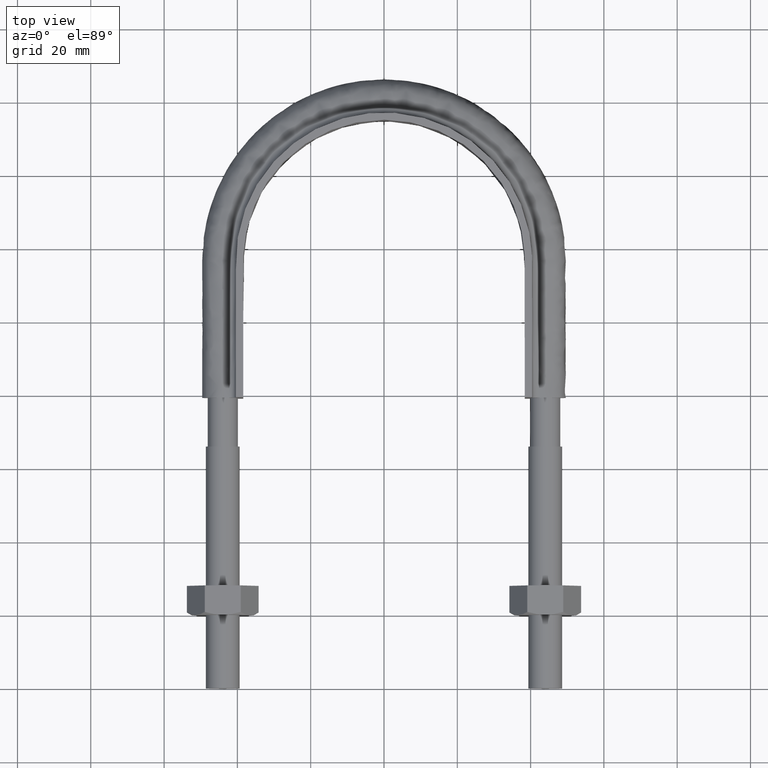
[diagram: clean part render]
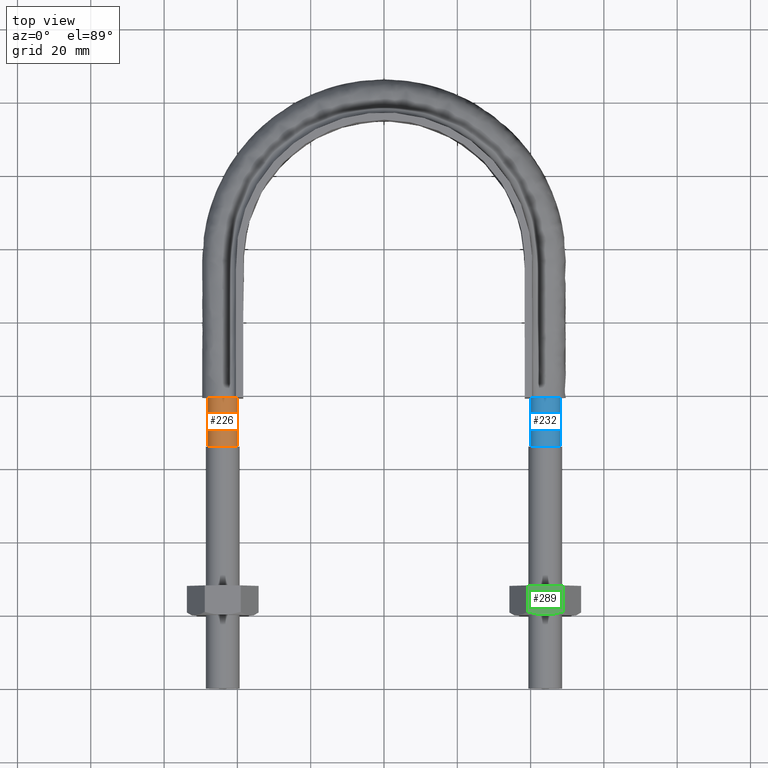
[diagram: same view with three faces highlighted in distinct colors, each labeled with its STEP entity id]
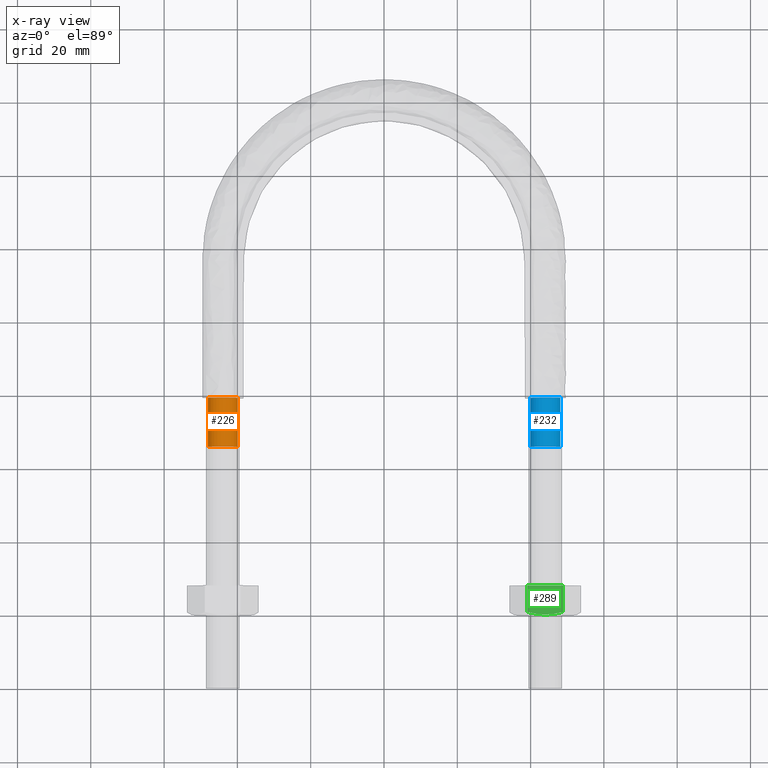
[diagram: x-ray of the same camera — body ghosted, the three highlighted faces saturated]
A machine part, top view with three faces highlighted in distinct colors.
The next image is the same camera in x-ray (body ghosted, the three faces saturated) — at least one of them is partly hidden behind the body in this view.
Their STEP definitions:

[orange] entity #226 — the highlighted cylindrical surface (bore or boss wall) has radius 4.1 mm, axis along (-0, -1, -0).
#226 = ADVANCED_FACE( '', ( #313, #314 ), #315, .T. );
#313 = FACE_OUTER_BOUND( '', #1161, .T. );
#314 = FACE_OUTER_BOUND( '', #1162, .T. );
#315 = CYLINDRICAL_SURFACE( '', #1163, 4.10000000000000 );
#1161 = EDGE_LOOP( '', ( #1523 ) );
#1162 = EDGE_LOOP( '', ( #1524, #1525, #1526, #1527, #1528, #1529, #1530 ) );
#1163 = AXIS2_PLACEMENT_3D( '', #1531, #1532, #1533 );
#1523 = ORIENTED_EDGE( '', *, *, #2017, .T. );
#1524 = ORIENTED_EDGE( '', *, *, #2018, .T. );
#1525 = ORIENTED_EDGE( '', *, *, #2019, .T. );
#1526 = ORIENTED_EDGE( '', *, *, #2020, .T. );
#1527 = ORIENTED_EDGE( '', *, *, #2021, .T. );
#1528 = ORIENTED_EDGE( '', *, *, #2022, .T. );
#1529 = ORIENTED_EDGE( '', *, *, #2023, .T. );
#1530 = ORIENTED_EDGE( '', *, *, #2024, .T. );
#1531 = CARTESIAN_POINT( '', ( -44.0000000000000, 79.3000000000000, 2.34512116756985E-015 ) );
#1532 = DIRECTION( '', ( -2.44921270764475E-016, -1.00000000000000, -6.12303176911189E-017 ) );
#1533 = DIRECTION( '', ( 1.00000000000000, -2.44921270764475E-016, -7.49830360911069E-033 ) );
#2017 = EDGE_CURVE( '', #2179, #2179, #2180, .T. );
#2018 = EDGE_CURVE( '', #2181, #2182, #2183, .T. );
#2019 = EDGE_CURVE( '', #2182, #2184, #2185, .T. );
#2020 = EDGE_CURVE( '', #2184, #2186, #2187, .T. );
#2021 = EDGE_CURVE( '', #2186, #2188, #2189, .T. );
#2022 = EDGE_CURVE( '', #2188, #2190, #2191, .T. );
#2023 = EDGE_CURVE( '', #2190, #2192, #2193, .T. );
#2024 = EDGE_CURVE( '', #2192, #2181, #2194, .T. );
#2179 = VERTEX_POINT( '', #2646 );
#2180 = CIRCLE( '', #2647, 4.10000000000000 );
#2181 = VERTEX_POINT( '', #2648 );
#2182 = VERTEX_POINT( '', #2649 );
#2183 = CIRCLE( '', #2650, 4.10000000000000 );
#2184 = VERTEX_POINT( '', #2651 );
#2185 = CIRCLE( '', #2652, 4.10000000000000 );
#2186 = VERTEX_POINT( '', #2653 );
#2187 = CIRCLE( '', #2654, 4.10000000000000 );
#2188 = VERTEX_POINT( '', #2655 );
#2189 = CIRCLE( '', #2656, 4.10000000000000 );
#2190 = VERTEX_POINT( '', #2657 );
#2191 = CIRCLE( '', #2658, 4.10000000000000 );
#2192 = VERTEX_POINT( '', #2659 );
#2193 = CIRCLE( '', #2660, 4.10000000000000 );
#2194 = CIRCLE( '', #2661, 4.10000000000000 );
#2646 = CARTESIAN_POINT( '', ( -39.9000000000000, 66.0000000000000, 1.53075794227797E-015 ) );
#2647 = AXIS2_PLACEMENT_3D( '', #3076, #3077, #3078 );
#2648 = CARTESIAN_POINT( '', ( -39.9000000000000, 79.3000000000000, 5.26458725159965E-014 ) );
#2649 = CARTESIAN_POINT( '', ( -41.4436918124017, 79.3000000000000, 3.20550907813692 ) );
#2650 = AXIS2_PLACEMENT_3D( '', #3079, #3080, #3081 );
#2651 = CARTESIAN_POINT( '', ( -44.9123358292510, 79.3000000000000, 3.99720443993860 ) );
#2652 = AXIS2_PLACEMENT_3D( '', #3082, #3083, #3084 );
#2653 = CARTESIAN_POINT( '', ( -47.6939723583999, 79.3000000000000, 1.77892333038206 ) );
#2654 = AXIS2_PLACEMENT_3D( '', #3085, #3086, #3087 );
#2655 = CARTESIAN_POINT( '', ( -47.6939723583999, 79.3000000000000, -1.77892333038199 ) );
#2656 = AXIS2_PLACEMENT_3D( '', #3088, #3089, #3090 );
#2657 = CARTESIAN_POINT( '', ( -44.9123358292208, 79.3000000000000, -3.99720443994549 ) );
#2658 = AXIS2_PLACEMENT_3D( '', #3091, #3092, #3093 );
#2659 = CARTESIAN_POINT( '', ( -41.4436918123794, 79.3000000000000, -3.20550907811908 ) );
#2660 = AXIS2_PLACEMENT_3D( '', #3094, #3095, #3096 );
#2661 = AXIS2_PLACEMENT_3D( '', #3097, #3098, #3099 );
#3076 = CARTESIAN_POINT( '', ( -44.0000000000000, 66.0000000000000, 1.53075794227797E-015 ) );
#3077 = DIRECTION( '', ( 2.44921270764476E-016, 1.00000000000000, 6.12303176911189E-017 ) );
#3078 = DIRECTION( '', ( 1.00000000000000, -2.44921270764476E-016, 0.000000000000000 ) );
#3079 = CARTESIAN_POINT( '', ( -44.0000000000000, 79.3000000000000, 2.34512116756985E-015 ) );
#3080 = DIRECTION( '', ( -2.44921270764475E-016, -1.00000000000000, -6.12303176911189E-017 ) );
#3081 = DIRECTION( '', ( 1.00000000000000, -2.44921270764475E-016, -1.04341724267742E-032 ) );
#3082 = CARTESIAN_POINT( '', ( -44.0000000000000, 79.3000000000000, 2.34512116756985E-015 ) );
#3083 = DIRECTION( '', ( -2.44921270764475E-016, -1.00000000000000, -6.12303176911189E-017 ) );
#3084 = DIRECTION( '', ( 1.00000000000000, -2.44921270764475E-016, -1.04341724267742E-032 ) );
#3085 = CARTESIAN_POINT( '', ( -44.0000000000000, 79.3000000000000, 2.34512116756985E-015 ) );
#3086 = DIRECTION( '', ( -2.44921270764475E-016, -1.00000000000000, -6.12303176911189E-017 ) );
#3087 = DIRECTION( '', ( 1.00000000000000, -2.44921270764475E-016, -1.04341724267742E-032 ) );
#3088 = CARTESIAN_POINT( '', ( -44.0000000000000, 79.3000000000000, 2.34512116756985E-015 ) );
#3089 = DIRECTION( '', ( -2.44921270764475E-016, -1.00000000000000, -6.12303176911189E-017 ) );
#3090 = DIRECTION( '', ( 1.00000000000000, -2.44921270764475E-016, -1.04341724267742E-032 ) );
#3091 = CARTESIAN_POINT( '', ( -44.0000000000000, 79.3000000000000, 2.34512116756985E-015 ) );
#3092 = DIRECTION( '', ( -2.44921270764475E-016, -1.00000000000000, -6.12303176911189E-017 ) );
#3093 = DIRECTION( '', ( 1.00000000000000, -2.44921270764475E-016, -1.04341724267742E-032 ) );
#3094 = CARTESIAN_POINT( '', ( -44.0000000000000, 79.3000000000000, 2.34512116756985E-015 ) );
#3095 = DIRECTION( '', ( -2.44921270764475E-016, -1.00000000000000, -6.12303176911189E-017 ) );
#3096 = DIRECTION( '', ( 1.00000000000000, -2.44921270764475E-016, -1.04341724267742E-032 ) );
#3097 = CARTESIAN_POINT( '', ( -44.0000000000000, 79.3000000000000, 2.34512116756985E-015 ) );
#3098 = DIRECTION( '', ( -2.44921270764475E-016, -1.00000000000000, -6.12303176911189E-017 ) );
#3099 = DIRECTION( '', ( 1.00000000000000, -2.44921270764475E-016, -1.04341724267742E-032 ) );

[blue] entity #232 — the highlighted cylindrical surface (bore or boss wall) has radius 4.1 mm, axis along (-0, -1, -0).
#232 = ADVANCED_FACE( '', ( #328, #329 ), #330, .T. );
#328 = FACE_OUTER_BOUND( '', #1325, .T. );
#329 = FACE_OUTER_BOUND( '', #1326, .T. );
#330 = CYLINDRICAL_SURFACE( '', #1327, 4.10000000000000 );
#1325 = EDGE_LOOP( '', ( #1568 ) );
#1326 = EDGE_LOOP( '', ( #1569, #1570, #1571, #1572, #1573, #1574, #1575 ) );
#1327 = AXIS2_PLACEMENT_3D( '', #1576, #1577, #1578 );
#1568 = ORIENTED_EDGE( '', *, *, #2043, .T. );
#1569 = ORIENTED_EDGE( '', *, *, #2044, .T. );
#1570 = ORIENTED_EDGE( '', *, *, #2042, .T. );
#1571 = ORIENTED_EDGE( '', *, *, #2045, .T. );
#1572 = ORIENTED_EDGE( '', *, *, #2028, .T. );
#1573 = ORIENTED_EDGE( '', *, *, #2046, .T. );
#1574 = ORIENTED_EDGE( '', *, *, #2047, .T. );
#1575 = ORIENTED_EDGE( '', *, *, #2025, .T. );
#1576 = CARTESIAN_POINT( '', ( 44.0000000000000, 79.3000000000000, 2.31450600872429E-015 ) );
#1577 = DIRECTION( '', ( -2.44921270764475E-016, -1.00000000000000, -6.12303176911189E-017 ) );
#1578 = DIRECTION( '', ( 1.00000000000000, -2.44921270764475E-016, -7.49830360911069E-033 ) );
#2025 = EDGE_CURVE( '', #2195, #2196, #2197, .T. );
#2028 = EDGE_CURVE( '', #2201, #2202, #2203, .T. );
#2042 = EDGE_CURVE( '', #2207, #2205, #2220, .T. );
#2043 = EDGE_CURVE( '', #2221, #2221, #2222, .T. );
#2044 = EDGE_CURVE( '', #2196, #2207, #2223, .T. );
#2045 = EDGE_CURVE( '', #2205, #2201, #2224, .T. );
#2046 = EDGE_CURVE( '', #2202, #2210, #2225, .T. );
#2047 = EDGE_CURVE( '', #2210, #2195, #2226, .T. );
#2195 = VERTEX_POINT( '', #2662 );
#2196 = VERTEX_POINT( '', #2663 );
#2197 = CIRCLE( '', #2664, 4.10000000000000 );
#2201 = VERTEX_POINT( '', #2671 );
#2202 = VERTEX_POINT( '', #2672 );
#2203 = CIRCLE( '', #2673, 4.10000000000000 );
#2205 = VERTEX_POINT( '', #2678 );
#2207 = VERTEX_POINT( '', #2683 );
#2210 = VERTEX_POINT( '', #2692 );
#2220 = CIRCLE( '', #2729, 4.10000000000000 );
#2221 = VERTEX_POINT( '', #2730 );
#2222 = CIRCLE( '', #2731, 4.10000000000000 );
#2223 = CIRCLE( '', #2732, 4.10000000000000 );
#2224 = CIRCLE( '', #2733, 4.10000000000000 );
#2225 = CIRCLE( '', #2734, 4.10000000000000 );
#2226 = CIRCLE( '', #2735, 4.10000000000000 );
#2662 = CARTESIAN_POINT( '', ( 47.6939723583999, 79.3000000000000, -1.77892333038203 ) );
#2663 = CARTESIAN_POINT( '', ( 47.6939723583999, 79.3000000000000, 1.77892333038204 ) );
#2664 = AXIS2_PLACEMENT_3D( '', #3100, #3101, #3102 );
#2671 = CARTESIAN_POINT( '', ( 39.9000000000000, 79.3000000000000, -3.30788549888553E-014 ) );
#2672 = CARTESIAN_POINT( '', ( 41.4436918123816, 79.3000000000000, -3.20550907812083 ) );
#2673 = AXIS2_PLACEMENT_3D( '', #3106, #3107, #3108 );
#2678 = CARTESIAN_POINT( '', ( 41.4436918123789, 79.3000000000000, 3.20550907811870 ) );
#2683 = CARTESIAN_POINT( '', ( 44.9123358292208, 79.3000000000000, 3.99720443994549 ) );
#2692 = CARTESIAN_POINT( '', ( 44.9123358292214, 79.3000000000000, -3.99720443994536 ) );
#2729 = AXIS2_PLACEMENT_3D( '', #3109, #3110, #3111 );
#2730 = CARTESIAN_POINT( '', ( 48.1000000000000, 66.0000000000000, 1.50014278343241E-015 ) );
#2731 = AXIS2_PLACEMENT_3D( '', #3112, #3113, #3114 );
#2732 = AXIS2_PLACEMENT_3D( '', #3115, #3116, #3117 );
#2733 = AXIS2_PLACEMENT_3D( '', #3118, #3119, #3120 );
#2734 = AXIS2_PLACEMENT_3D( '', #3121, #3122, #3123 );
#2735 = AXIS2_PLACEMENT_3D( '', #3124, #3125, #3126 );
#3100 = CARTESIAN_POINT( '', ( 44.0000000000000, 79.3000000000000, 2.31450600872429E-015 ) );
#3101 = DIRECTION( '', ( -2.44921270764475E-016, -1.00000000000000, -6.12303176911189E-017 ) );
#3102 = DIRECTION( '', ( 1.00000000000000, -2.44921270764475E-016, -7.49830360911068E-033 ) );
#3106 = CARTESIAN_POINT( '', ( 44.0000000000000, 79.3000000000000, 2.31450600872429E-015 ) );
#3107 = DIRECTION( '', ( -2.44921270764475E-016, -1.00000000000000, -6.12303176911189E-017 ) );
#3108 = DIRECTION( '', ( 1.00000000000000, -2.44921270764475E-016, -7.49830360911068E-033 ) );
#3109 = CARTESIAN_POINT( '', ( 44.0000000000000, 79.3000000000000, 2.31450600872429E-015 ) );
#3110 = DIRECTION( '', ( -2.44921270764475E-016, -1.00000000000000, -6.12303176911189E-017 ) );
#3111 = DIRECTION( '', ( 1.00000000000000, -2.44921270764475E-016, -7.49830360911068E-033 ) );
#3112 = CARTESIAN_POINT( '', ( 44.0000000000000, 66.0000000000000, 1.50014278343241E-015 ) );
#3113 = DIRECTION( '', ( 2.44921270764475E-016, 1.00000000000000, 6.12303176911189E-017 ) );
#3114 = DIRECTION( '', ( 1.00000000000000, -2.44921270764475E-016, 0.000000000000000 ) );
#3115 = CARTESIAN_POINT( '', ( 44.0000000000000, 79.3000000000000, 2.31450600872429E-015 ) );
#3116 = DIRECTION( '', ( -2.44921270764475E-016, -1.00000000000000, -6.12303176911189E-017 ) );
#3117 = DIRECTION( '', ( 1.00000000000000, -2.44921270764475E-016, -7.49830360911068E-033 ) );
#3118 = CARTESIAN_POINT( '', ( 44.0000000000000, 79.3000000000000, 2.31450600872429E-015 ) );
#3119 = DIRECTION( '', ( -2.44921270764475E-016, -1.00000000000000, -6.12303176911189E-017 ) );
#3120 = DIRECTION( '', ( 1.00000000000000, -2.44921270764475E-016, -7.49830360911068E-033 ) );
#3121 = CARTESIAN_POINT( '', ( 44.0000000000000, 79.3000000000000, 2.31450600872429E-015 ) );
#3122 = DIRECTION( '', ( -2.44921270764475E-016, -1.00000000000000, -6.12303176911189E-017 ) );
#3123 = DIRECTION( '', ( 1.00000000000000, -2.44921270764475E-016, -7.49830360911068E-033 ) );
#3124 = CARTESIAN_POINT( '', ( 44.0000000000000, 79.3000000000000, 2.31450600872429E-015 ) );
#3125 = DIRECTION( '', ( -2.44921270764475E-016, -1.00000000000000, -6.12303176911189E-017 ) );
#3126 = DIRECTION( '', ( 1.00000000000000, -2.44921270764475E-016, -7.49830360911068E-033 ) );

[green] entity #289 — the highlighted planar face has unit normal (0, 0, -1).
#289 = ADVANCED_FACE( '', ( #455 ), #456, .F. );
#455 = FACE_OUTER_BOUND( '', #1452, .T. );
#456 = PLANE( '', #1453 );
#1452 = EDGE_LOOP( '', ( #1962, #1963, #1964, #1965, #1966 ) );
#1453 = AXIS2_PLACEMENT_3D( '', #1967, #1968, #1969 );
#1962 = ORIENTED_EDGE( '', *, *, #2152, .F. );
#1963 = ORIENTED_EDGE( '', *, *, #2139, .F. );
#1964 = ORIENTED_EDGE( '', *, *, #2151, .F. );
#1965 = ORIENTED_EDGE( '', *, *, #2127, .F. );
#1966 = ORIENTED_EDGE( '', *, *, #2153, .F. );
#1967 = CARTESIAN_POINT( '', ( 39.0925227118882, 28.0000000000000, 8.50000000000000 ) );
#1968 = DIRECTION( '', ( 5.55111512312578E-017, 6.12303176911189E-017, -1.00000000000000 ) );
#1969 = DIRECTION( '', ( -1.00000000000000, 0.000000000000000, -5.55111512312578E-017 ) );
#2127 = EDGE_CURVE( '', #2363, #2365, #2366, .T. );
#2139 = EDGE_CURVE( '', #2384, #2379, #2386, .T. );
#2151 = EDGE_CURVE( '', #2365, #2384, #2400, .T. );
#2152 = EDGE_CURVE( '', #2379, #2401, #2402, .T. );
#2153 = EDGE_CURVE( '', #2401, #2363, #2403, .F. );
#2363 = VERTEX_POINT( '', #2982 );
#2365 = VERTEX_POINT( '', #2984 );
#2366 = LINE( '', #2985, #2986 );
#2379 = VERTEX_POINT( '', #3007 );
#2384 = VERTEX_POINT( '', #3017 );
#2386 = B_SPLINE_CURVE_WITH_KNOTS( '', 3, ( #3019, #3020, #3021, #3022, #3023, #3024 ), .UNSPECIFIED., .F., .F., ( 4, 2, 4 ), ( 6.93889390390723E-018, 0.00246745482903607, 0.00493490965807212 ), .UNSPECIFIED. );
#2400 = LINE( '', #3058, #3059 );
#2401 = VERTEX_POINT( '', #3060 );
#2402 = B_SPLINE_CURVE_WITH_KNOTS( '', 3, ( #3061, #3062, #3063, #3064, #3065, #3066 ), .UNSPECIFIED., .F., .F., ( 4, 2, 4 ), ( 0.000000000000000, 0.00246745482903606, 0.00493490965807211 ), .UNSPECIFIED. );
#2403 = LINE( '', #3067, #3068 );
#2982 = CARTESIAN_POINT( '', ( 39.1225006406971, 28.0000000000000, 8.50000000000000 ) );
#2984 = CARTESIAN_POINT( '', ( 48.8774993593029, 28.0000000000000, 8.50000000000000 ) );
#2985 = CARTESIAN_POINT( '', ( 48.9000000000000, 28.0000000000000, 8.50000000000000 ) );
#2986 = VECTOR( '', #3263, 1000.00000000000 );
#3007 = CARTESIAN_POINT( '', ( 44.0000000000000, 20.0000000000000, 8.50000000000000 ) );
#3017 = CARTESIAN_POINT( '', ( 48.8774993593029, 20.7505553499465, 8.50000000000000 ) );
#3019 = CARTESIAN_POINT( '', ( 48.8774993593029, 20.7505553499465, 8.50000000000000 ) );
#3020 = CARTESIAN_POINT( '', ( 48.0805717066773, 20.5215585493657, 8.50000000000000 ) );
#3021 = CARTESIAN_POINT( '', ( 47.2774431756629, 20.3328582843707, 8.50000000000000 ) );
#3022 = CARTESIAN_POINT( '', ( 45.6533062476857, 20.0716504305290, 8.50000000000000 ) );
#3023 = CARTESIAN_POINT( '', ( 44.8321659501907, 20.0000000000000, 8.50000000000000 ) );
#3024 = CARTESIAN_POINT( '', ( 44.0000000000000, 20.0000000000000, 8.50000000000000 ) );
#3058 = CARTESIAN_POINT( '', ( 48.8774993593029, 28.0000000000000, 8.50000000000000 ) );
#3059 = VECTOR( '', #3299, 1000.00000000000 );
#3060 = CARTESIAN_POINT( '', ( 39.1225006406971, 20.7505553499465, 8.50000000000000 ) );
#3061 = CARTESIAN_POINT( '', ( 44.0000000000000, 20.0000000000000, 8.50000000000000 ) );
#3062 = CARTESIAN_POINT( '', ( 43.1678340498093, 20.0000000000000, 8.50000000000000 ) );
#3063 = CARTESIAN_POINT( '', ( 42.3466937523143, 20.0716504305290, 8.50000000000000 ) );
#3064 = CARTESIAN_POINT( '', ( 40.7225568243371, 20.3328582843707, 8.50000000000000 ) );
#3065 = CARTESIAN_POINT( '', ( 39.9194282933227, 20.5215585493657, 8.50000000000000 ) );
#3066 = CARTESIAN_POINT( '', ( 39.1225006406971, 20.7505553499465, 8.50000000000000 ) );
#3067 = CARTESIAN_POINT( '', ( 39.1225006406971, 28.0000000000000, 8.50000000000000 ) );
#3068 = VECTOR( '', #3300, 1000.00000000000 );
#3263 = DIRECTION( '', ( 1.00000000000000, -2.44921270764475E-016, 5.55111512312578E-017 ) );
#3299 = DIRECTION( '', ( -2.44921270764475E-016, -1.00000000000000, -6.12303176911189E-017 ) );
#3300 = DIRECTION( '', ( -2.44921270764475E-016, -1.00000000000000, -6.12303176911189E-017 ) );